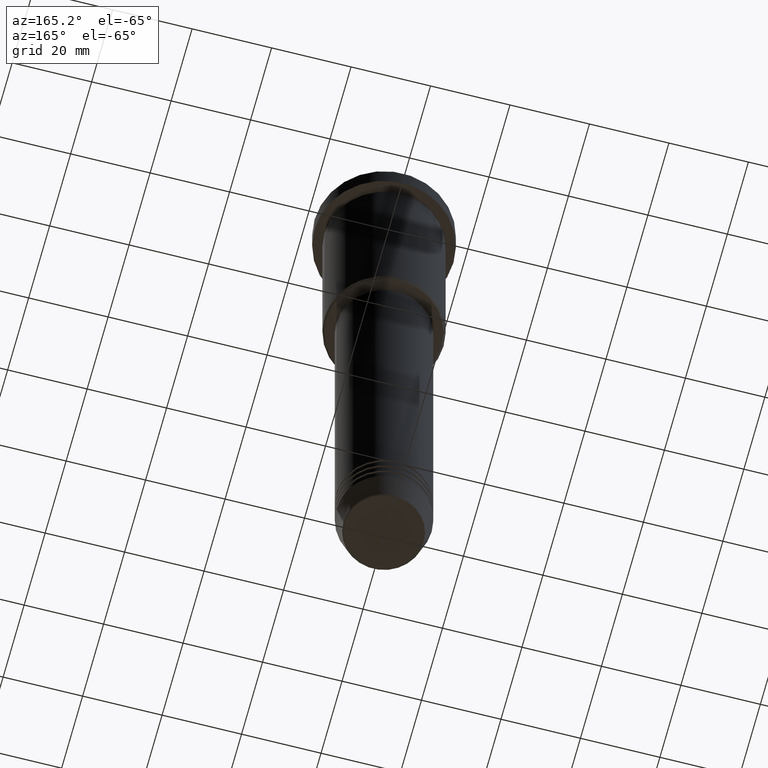
[diagram: clean part render]
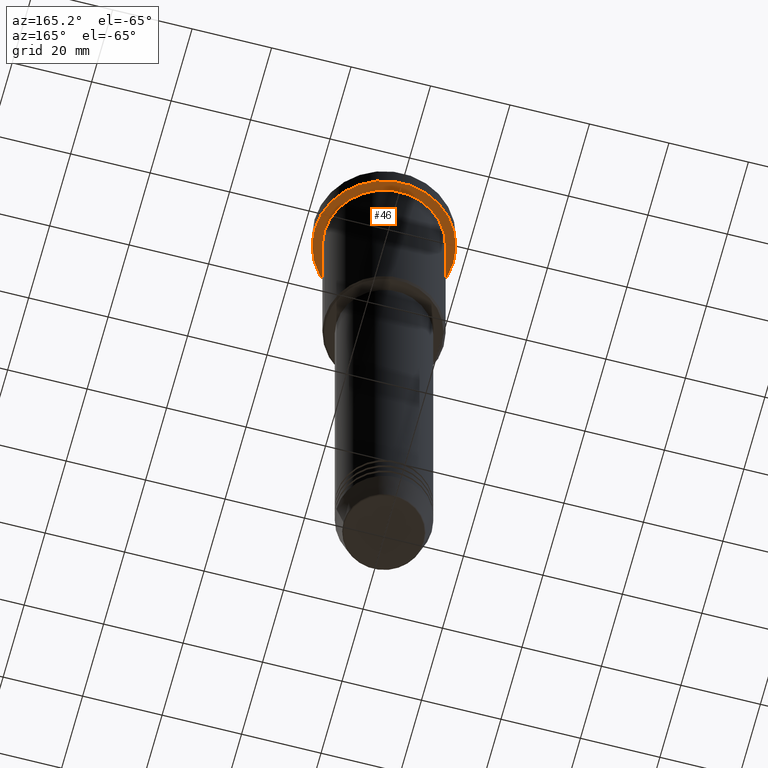
[diagram: same view with one face highlighted and labeled with its STEP entity id]
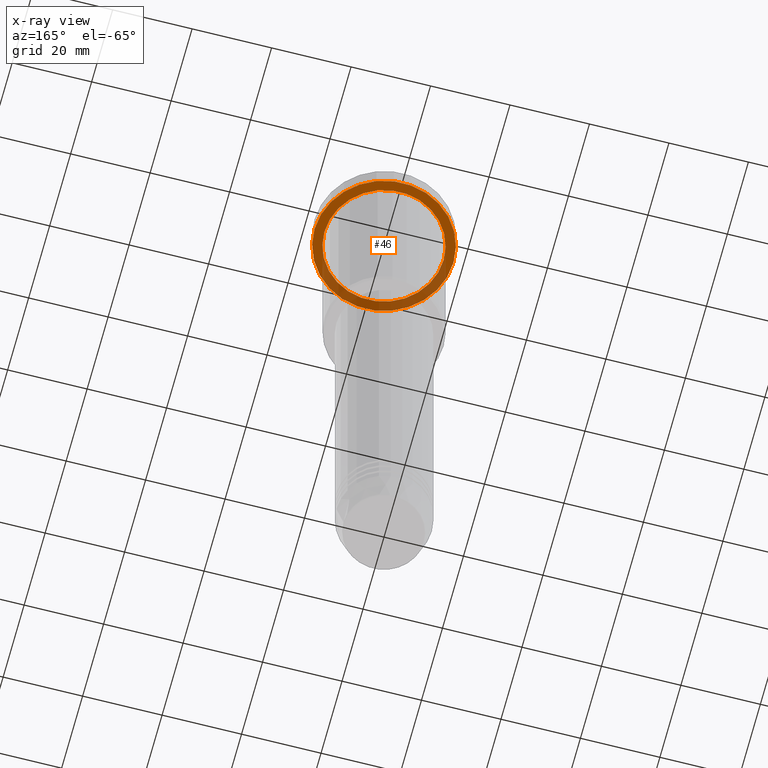
[diagram: x-ray of the same camera — body ghosted, the highlighted face saturated]
A machine part, auxiliary view. The second image highlights one B-rep face of the part: STEP entity #46.
The next image is the same camera in x-ray: the body ghosted, the highlighted face saturated — about 37% of this face is hidden behind the body in this view.
In plain terms, the highlighted planar face has unit normal (0, 0, -1).
Its self-contained STEP definition (entity closure, byte-faithful):
#12 = ORIENTED_EDGE ( 'NONE', *, *, #302, .T. ) ;
#46 = ADVANCED_FACE ( 'NONE', ( #1040, #603 ), #149, .T. ) ;
#52 = DIRECTION ( 'NONE',  ( 0.000000000000000000, 0.000000000000000000, -1.000000000000000000 ) ) ;
#93 = DIRECTION ( 'NONE',  ( -1.000000000000000000, 0.000000000000000000, 0.000000000000000000 ) ) ;
#103 = VERTEX_POINT ( 'NONE', #1015 ) ;
#104 = ORIENTED_EDGE ( 'NONE', *, *, #389, .T. ) ;
#149 = PLANE ( 'NONE',  #909 ) ;
#215 = CIRCLE ( 'NONE', #986, 15.00000000000000000 ) ;
#216 = ORIENTED_EDGE ( 'NONE', *, *, #277, .F. ) ;
#277 = EDGE_CURVE ( 'NONE', #422, #331, #379, .T. ) ;
#291 = EDGE_CURVE ( 'NONE', #331, #422, #818, .T. ) ;
#302 = EDGE_CURVE ( 'NONE', #103, #1090, #215, .T. ) ;
#331 = VERTEX_POINT ( 'NONE', #704 ) ;
#379 = CIRCLE ( 'NONE', #722, 17.50000000000000000 ) ;
#389 = EDGE_CURVE ( 'NONE', #1090, #103, #1125, .T. ) ;
#422 = VERTEX_POINT ( 'NONE', #1012 ) ;
#434 = AXIS2_PLACEMENT_3D ( 'NONE', #551, #467, #827 ) ;
#467 = DIRECTION ( 'NONE',  ( -0.000000000000000000, -0.000000000000000000, 1.000000000000000000 ) ) ;
#475 = AXIS2_PLACEMENT_3D ( 'NONE', #723, #1086, #93 ) ;
#509 = CARTESIAN_POINT ( 'NONE',  ( 0.000000000000000000, 17.50000000000000000, -5.999999999999995559 ) ) ;
#525 = DIRECTION ( 'NONE',  ( -0.000000000000000000, -0.000000000000000000, 1.000000000000000000 ) ) ;
#543 = DIRECTION ( 'NONE',  ( -0.000000000000000000, -0.000000000000000000, 1.000000000000000000 ) ) ;
#551 = CARTESIAN_POINT ( 'NONE',  ( 0.000000000000000000, 0.000000000000000000, -5.999999999999995559 ) ) ;
#585 = CARTESIAN_POINT ( 'NONE',  ( 15.00000000000000000, 1.836970198721029589E-15, -5.999999999999994671 ) ) ;
#601 = DIRECTION ( 'NONE',  ( -1.000000000000000000, 0.000000000000000000, 0.000000000000000000 ) ) ;
#603 = FACE_OUTER_BOUND ( 'NONE', #971, .T. ) ;
#638 = DIRECTION ( 'NONE',  ( 1.000000000000000000, 0.000000000000000000, 0.000000000000000000 ) ) ;
#688 = CARTESIAN_POINT ( 'NONE',  ( 0.000000000000000000, 0.000000000000000000, -5.999999999999995559 ) ) ;
#704 = CARTESIAN_POINT ( 'NONE',  ( -17.50000000000000000, 2.143131898507868248E-15, -5.999999999999995559 ) ) ;
#722 = AXIS2_PLACEMENT_3D ( 'NONE', #1091, #543, #638 ) ;
#723 = CARTESIAN_POINT ( 'NONE',  ( 0.000000000000000000, 0.000000000000000000, -5.999999999999995559 ) ) ;
#818 = CIRCLE ( 'NONE', #434, 17.50000000000000000 ) ;
#827 = DIRECTION ( 'NONE',  ( 1.000000000000000000, 0.000000000000000000, 0.000000000000000000 ) ) ;
#909 = AXIS2_PLACEMENT_3D ( 'NONE', #509, #52, #1148 ) ;
#971 = EDGE_LOOP ( 'NONE', ( #216, #1110 ) ) ;
#986 = AXIS2_PLACEMENT_3D ( 'NONE', #688, #525, #601 ) ;
#1012 = CARTESIAN_POINT ( 'NONE',  ( 17.50000000000000000, 0.000000000000000000, -5.999999999999995559 ) ) ;
#1015 = CARTESIAN_POINT ( 'NONE',  ( -15.00000000000000000, 0.000000000000000000, -5.999999999999994671 ) ) ;
#1040 = FACE_BOUND ( 'NONE', #1127, .T. ) ;
#1086 = DIRECTION ( 'NONE',  ( -0.000000000000000000, -0.000000000000000000, 1.000000000000000000 ) ) ;
#1090 = VERTEX_POINT ( 'NONE', #585 ) ;
#1091 = CARTESIAN_POINT ( 'NONE',  ( 0.000000000000000000, 0.000000000000000000, -5.999999999999995559 ) ) ;
#1110 = ORIENTED_EDGE ( 'NONE', *, *, #291, .F. ) ;
#1125 = CIRCLE ( 'NONE', #475, 15.00000000000000000 ) ;
#1127 = EDGE_LOOP ( 'NONE', ( #12, #104 ) ) ;
#1148 = DIRECTION ( 'NONE',  ( -1.000000000000000000, 0.000000000000000000, -0.000000000000000000 ) ) ;